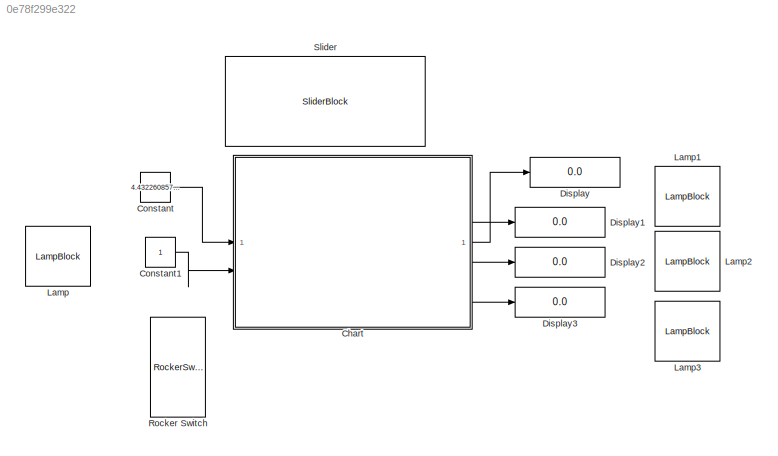
MODEL slx_0e78f299e322
KIND model
CONFIG AbsTol = auto
CONFIG EnableMultiTasking = off
CONFIG FixedStep = auto
CONFIG MaxStep = auto
CONFIG MinStep = auto
CONFIG RelTol = 1e-3
CONFIG SampleTimeConstraint = Unconstrained
CONFIG SolverName = VariableStepAuto
CONFIG StartTime = 0.0
CONFIG StopTime = inf
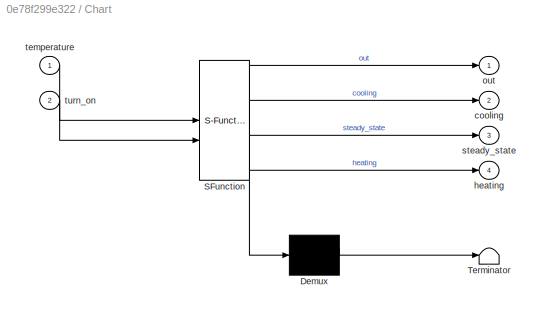
BLOCK [SubSystem] Chart
  ErrorFcn = Stateflow.Translate.translate
  PermitHierarchicalResolution = ExplicitOnly
  SFBlockType = Chart
  TreatAsAtomicUnit = on
BLOCK [Demux] Chart/ Demux 
  Outputs = 1
BLOCK [S-Function] Chart/ SFunction 
  EnableBusSupport = on
  FunctionName = sf_sfun
  PortCounts = [2 5]
  SFcnIsStateOwnerBlock = off
  SFunctionDeploymentMode = off
  Tag = Stateflow S-Function 3
BLOCK [Terminator] Chart/ Terminator 
BLOCK [Outport] Chart/cooling
  Port = 2
BLOCK [Outport] Chart/heating
  Port = 4
BLOCK [Outport] Chart/out
BLOCK [Outport] Chart/steady_state
  Port = 3
BLOCK [Inport] Chart/temperature
BLOCK [Inport] Chart/turn_on
  Port = 2
BLOCK [Constant] Constant
  Value = 4.432260857019189
BLOCK [Constant] Constant1
BLOCK [Display] Display
  Decimation = 1
BLOCK [Display] Display1
  Decimation = 1
BLOCK [Display] Display2
  Decimation = 1
BLOCK [Display] Display3
  Decimation = 1
BLOCK [LampBlock] Lamp
  LabelPosition = Hide
BLOCK [LampBlock] Lamp1
  LabelPosition = Hide
BLOCK [LampBlock] Lamp2
  LabelPosition = Hide
BLOCK [LampBlock] Lamp3
  LabelPosition = Hide
BLOCK [RockerSwitchBlock] Rocker Switch
BLOCK [SliderBlock] Slider
  ScaleMax = 30
LINE Chart:1 -> Display:1
LINE Chart:2 -> Display1:1
LINE Chart:3 -> Display2:1
LINE Chart:4 -> Display3:1
LINE Constant1:1 -> Chart:2
LINE Constant:1 -> Chart:1
CHART Chart states=4 transitions=14
  STATE_LABEL 'on_off\nout=0'
  STATE_LABEL 'steady\nentry:\nsteady_state=1;\nout=heat_temp;\nexit:\nsteady_state=0;'
  STATE_LABEL 'heat_on\nentry:heating=1;\nheat_temp=heat_temp+(temperature-...\n    heat_temp);\nout=heat_temp;\nexit:heating=0;'
  STATE_LABEL 'cooler_on\nentry:cooling=1;\nheat_temp=heat_temp-...\n    (heat_temp- temperature);\nout=heat_temp;\nexit:cooling=0'
CHART  states=0 transitions=0
